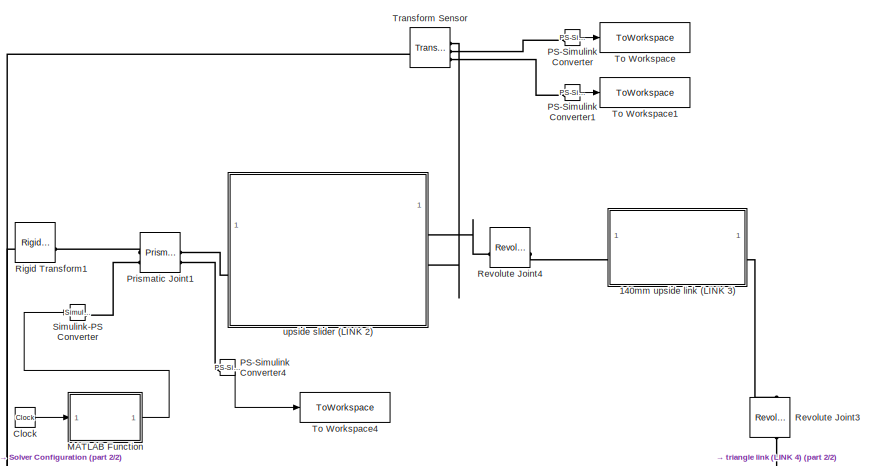
[diagram: root canvas - part 1/2, top center region]
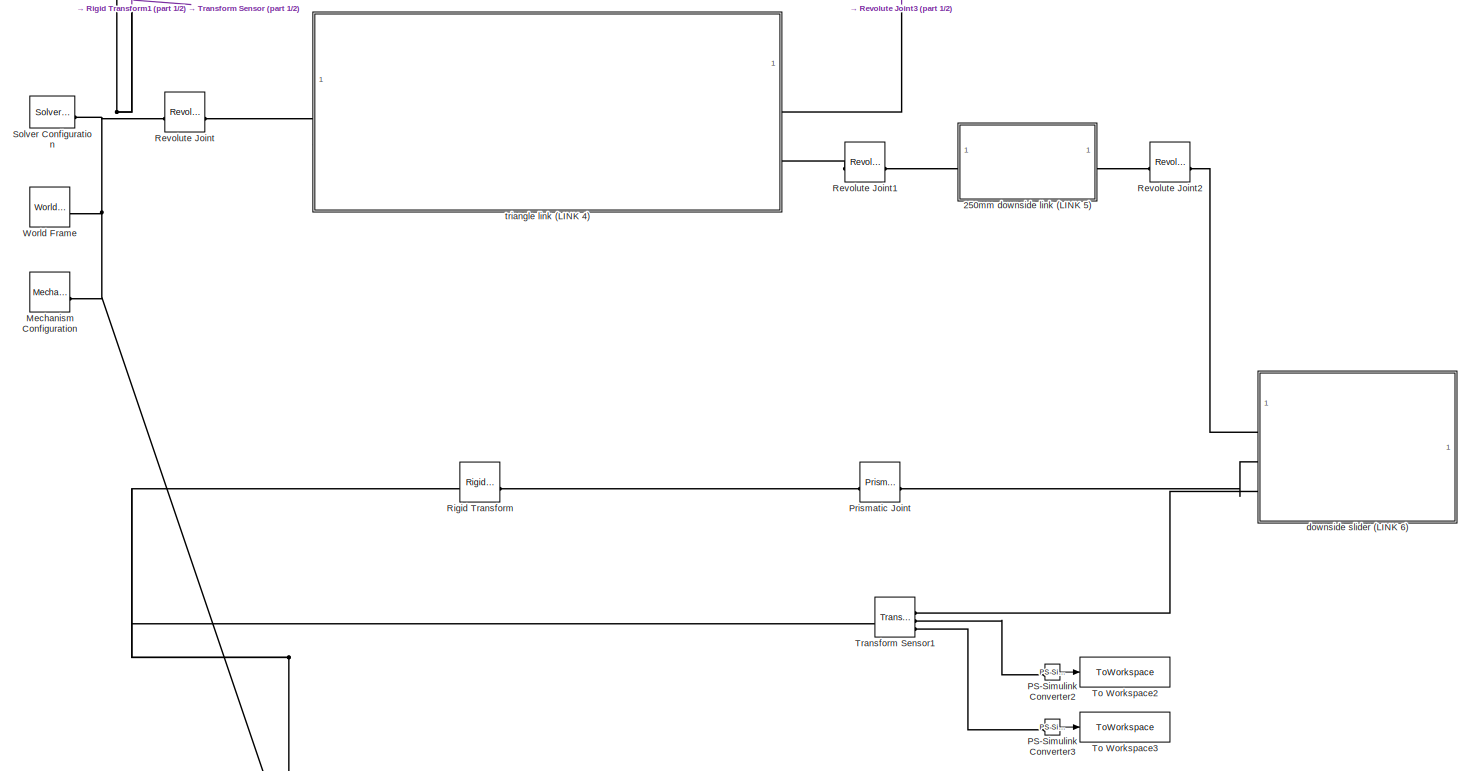
[diagram: root canvas - part 2/2, full width, middle band]
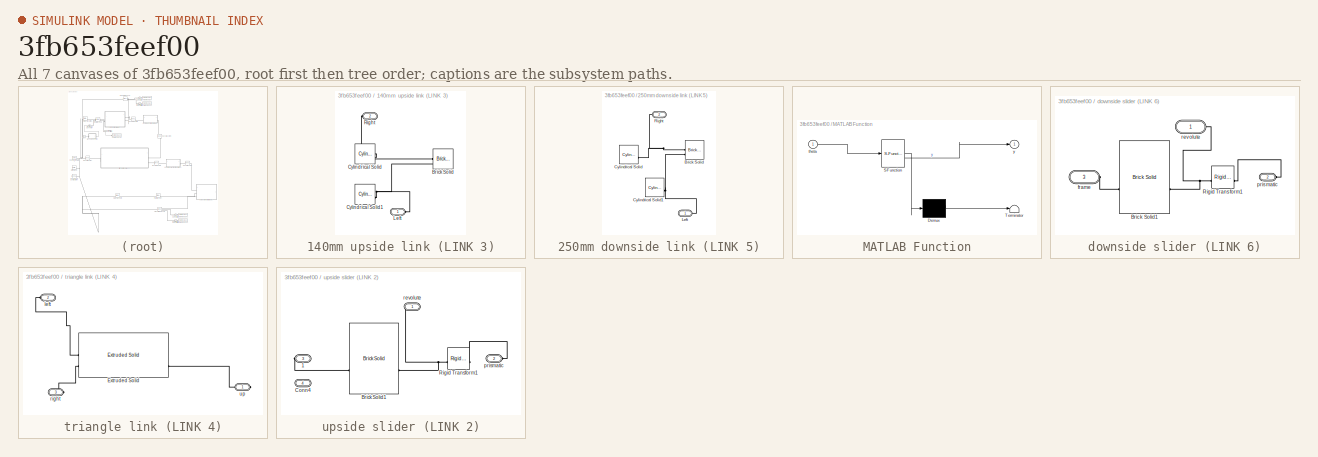
[diagram: thumbnail index - all 7 canvases of the model, root first then tree order]
MODEL slx_3fb653feef00
KIND model
CONFIG AbsTol = auto
CONFIG EnableMultiTasking = off
CONFIG FixedStep = auto
CONFIG MaxStep = auto
CONFIG MinStep = auto
CONFIG RelTol = 1e-3
CONFIG SampleTimeConstraint = Unconstrained
CONFIG SolverName = VariableStepAuto
CONFIG StartTime = 0.0
CONFIG StopTime = 1.0
BLOCK [SubSystem] 140mm upside link (LINK 3)
BLOCK [Reference] 140mm upside link (LINK 3)/Brick Solid  REF=sm_lib/Body Elements/Brick Solid
  SourceBlock = sm_lib/Body Elements/Brick Solid
  SourceType = Brick Solid
BLOCK [Reference] 140mm upside link (LINK 3)/Cylindrical Solid  REF=sm_lib/Body Elements/Cylindrical Solid
  SourceBlock = sm_lib/Body Elements/Cylindrical Solid
  SourceType = Cylindrical Solid
BLOCK [Reference] 140mm upside link (LINK 3)/Cylindrical Solid1  REF=sm_lib/Body Elements/Cylindrical Solid
  SourceBlock = sm_lib/Body Elements/Cylindrical Solid
  SourceType = Cylindrical Solid
BLOCK [PMIOPort] 140mm upside link (LINK 3)/Left
  Side = Left
BLOCK [PMIOPort] 140mm upside link (LINK 3)/Right
  Port = 2
  Side = Right
BLOCK [SubSystem] 250mm downside link (LINK 5)
BLOCK [Reference] 250mm downside link (LINK 5)/Brick Solid  REF=sm_lib/Body Elements/Brick Solid
  SourceBlock = sm_lib/Body Elements/Brick Solid
  SourceType = Brick Solid
BLOCK [Reference] 250mm downside link (LINK 5)/Cylindrical Solid  REF=sm_lib/Body Elements/Cylindrical Solid
  SourceBlock = sm_lib/Body Elements/Cylindrical Solid
  SourceType = Cylindrical Solid
BLOCK [Reference] 250mm downside link (LINK 5)/Cylindrical Solid1  REF=sm_lib/Body Elements/Cylindrical Solid
  SourceBlock = sm_lib/Body Elements/Cylindrical Solid
  SourceType = Cylindrical Solid
BLOCK [PMIOPort] 250mm downside link (LINK 5)/Left
  Side = Left
BLOCK [PMIOPort] 250mm downside link (LINK 5)/Right
  Port = 2
  Side = Right
BLOCK [Clock] Clock
  Decimation = 1
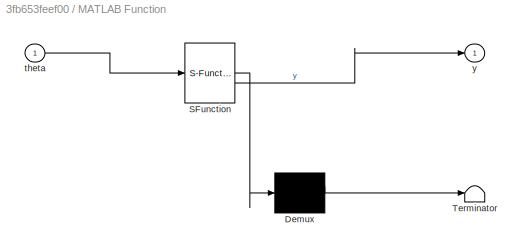
BLOCK [SubSystem] MATLAB Function
  ErrorFcn = Stateflow.Translate.translate
  PermitHierarchicalResolution = ExplicitOnly
  SFBlockType = MATLAB Function
  TreatAsAtomicUnit = on
BLOCK [Demux] MATLAB Function/ Demux 
  Outputs = 1
BLOCK [S-Function] MATLAB Function/ SFunction 
  EnableBusSupport = off
  FunctionName = sf_sfun
  PortCounts = [1 2]
  SFcnIsStateOwnerBlock = off
  SFunctionDeploymentMode = off
  Tag = Stateflow S-Function 2
BLOCK [Terminator] MATLAB Function/ Terminator 
BLOCK [Inport] MATLAB Function/theta
BLOCK [Outport] MATLAB Function/y
BLOCK [Reference] Mechanism Configuration  REF=sm_lib/Utilities/Mechanism
Configuration
  SourceBlock = sm_lib/Utilities/Mechanism\nConfiguration
  SourceType = Mechanism\nConfiguration
BLOCK [Reference] PS-Simulink Converter  REF=nesl_utility/PS-Simulink
Converter
  SourceBlock = nesl_utility/PS-Simulink\nConverter
  SourceType = PS-Simulink\nConverter
BLOCK [Reference] PS-Simulink Converter1  REF=nesl_utility/PS-Simulink
Converter
  SourceBlock = nesl_utility/PS-Simulink\nConverter
  SourceType = PS-Simulink\nConverter
BLOCK [Reference] PS-Simulink Converter2  REF=nesl_utility/PS-Simulink
Converter
  SourceBlock = nesl_utility/PS-Simulink\nConverter
  SourceType = PS-Simulink\nConverter
BLOCK [Reference] PS-Simulink Converter3  REF=nesl_utility/PS-Simulink
Converter
  SourceBlock = nesl_utility/PS-Simulink\nConverter
  SourceType = PS-Simulink\nConverter
BLOCK [Reference] PS-Simulink Converter4  REF=nesl_utility/PS-Simulink
Converter
  SourceBlock = nesl_utility/PS-Simulink\nConverter
  SourceType = PS-Simulink\nConverter
BLOCK [Reference] Prismatic Joint  REF=sm_lib/Joints/Prismatic
Joint
  SourceBlock = sm_lib/Joints/Prismatic\nJoint
  SourceType = Prismatic\nJoint
BLOCK [Reference] Prismatic Joint1  REF=sm_lib/Joints/Prismatic
Joint
  SourceBlock = sm_lib/Joints/Prismatic\nJoint
  SourceType = Prismatic\nJoint
BLOCK [Reference] Revolute Joint  REF=sm_lib/Joints/Revolute Joint
  SourceBlock = sm_lib/Joints/Revolute Joint
  SourceType = Revolute Joint
BLOCK [Reference] Revolute Joint1  REF=sm_lib/Joints/Revolute Joint
  SourceBlock = sm_lib/Joints/Revolute Joint
  SourceType = Revolute Joint
BLOCK [Reference] Revolute Joint2  REF=sm_lib/Joints/Revolute Joint
  SourceBlock = sm_lib/Joints/Revolute Joint
  SourceType = Revolute Joint
BLOCK [Reference] Revolute Joint3  REF=sm_lib/Joints/Revolute Joint
  NameLocation = left
  SourceBlock = sm_lib/Joints/Revolute Joint
  SourceType = Revolute Joint
BLOCK [Reference] Revolute Joint4  REF=sm_lib/Joints/Revolute Joint
  SourceBlock = sm_lib/Joints/Revolute Joint
  SourceType = Revolute Joint
BLOCK [Reference] Rigid Transform  REF=sm_lib/Frames and
Transforms/Rigid
Transform
  SourceBlock = sm_lib/Frames and\nTransforms/Rigid\nTransform
  SourceType = Rigid\nTransform
BLOCK [Reference] Rigid Transform1  REF=sm_lib/Frames and
Transforms/Rigid
Transform
  SourceBlock = sm_lib/Frames and\nTransforms/Rigid\nTransform
  SourceType = Rigid\nTransform
BLOCK [Reference] Simulink-PS Converter  REF=nesl_utility/Simulink-PS
Converter
  SourceBlock = nesl_utility/Simulink-PS\nConverter
  SourceType = Simulink-PS\nConverter
BLOCK [Reference] Solver Configuration  REF=nesl_utility/Solver
Configuration
  SourceBlock = nesl_utility/Solver\nConfiguration
  SourceType = Solver\nConfiguration
BLOCK [ToWorkspace] To Workspace
  FixptAsFi = on
  MaxDataPoints = inf
  SampleTime = -1
  SaveFormat = Timeseries
  VariableName = link2vel
BLOCK [ToWorkspace] To Workspace1
  FixptAsFi = on
  MaxDataPoints = inf
  SampleTime = -1
  SaveFormat = Timeseries
  VariableName = link2acc
BLOCK [ToWorkspace] To Workspace2
  FixptAsFi = on
  MaxDataPoints = inf
  SampleTime = -1
  SaveFormat = Timeseries
  VariableName = link6vel
BLOCK [ToWorkspace] To Workspace3
  FixptAsFi = on
  MaxDataPoints = inf
  SampleTime = -1
  SaveFormat = Timeseries
  VariableName = link6acc
BLOCK [ToWorkspace] To Workspace4
  FixptAsFi = on
  MaxDataPoints = inf
  SampleTime = -1
  SaveFormat = Structure With Time
  VariableName = input_force
BLOCK [Reference] Transform Sensor  REF=sm_lib/Frames and
Transforms/Transform
Sensor
  SourceBlock = sm_lib/Frames and\nTransforms/Transform\nSensor
  SourceType = Transform\nSensor
BLOCK [Reference] Transform Sensor1  REF=sm_lib/Frames and
Transforms/Transform
Sensor
  SourceBlock = sm_lib/Frames and\nTransforms/Transform\nSensor
  SourceType = Transform\nSensor
BLOCK [Reference] World Frame  REF=sm_lib/Frames and
Transforms/World Frame
  SourceBlock = sm_lib/Frames and\nTransforms/World Frame
  SourceType = World Frame
BLOCK [SubSystem] downside slider (LINK 6)
BLOCK [Reference] downside slider (LINK 6)/Brick Solid1  REF=sm_lib/Body Elements/Brick Solid
  SourceBlock = sm_lib/Body Elements/Brick Solid
  SourceType = Brick Solid
BLOCK [Reference] downside slider (LINK 6)/Rigid Transform1  REF=sm_lib/Frames and
Transforms/Rigid
Transform
  SourceBlock = sm_lib/Frames and\nTransforms/Rigid\nTransform
  SourceType = Rigid\nTransform
BLOCK [PMIOPort] downside slider (LINK 6)/frame
  Port = 3
  Side = Left
BLOCK [PMIOPort] downside slider (LINK 6)/prismatic
  Port = 2
  Side = Left
BLOCK [PMIOPort] downside slider (LINK 6)/revolute
  Side = Left
BLOCK [SubSystem] triangle link (LINK 4)
BLOCK [Reference] triangle link (LINK 4)/Extruded Solid  REF=sm_lib/Body Elements/Extruded Solid
  SourceBlock = sm_lib/Body Elements/Extruded Solid
  SourceType = Extruded Solid
BLOCK [PMIOPort] triangle link (LINK 4)/left
  Port = 2
  Side = Left
BLOCK [PMIOPort] triangle link (LINK 4)/right
  Port = 3
  Side = Right
BLOCK [PMIOPort] triangle link (LINK 4)/up
  Side = Right
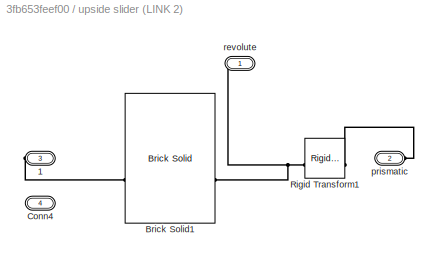
BLOCK [SubSystem] upside slider (LINK 2)
  PortSchema = {"entries":[{"content":{"sides":[{"content":{"connectorIds":["LConn1"]},"type":"ConnectorPlacement.EquallySpacedRectSide","uuid":"f0b6219e-fc0f-4f1e-9ffa-b6ed645b7a73"},{"content":{"connectorIds":["RConn1","RConn2"],"side":"RIGHT"},"type":"ConnectorPlacement.EquallySpacedRectSide","uuid":"dfd17382-4ec3-42cf-b518-ef843e92e2f4"},{"content":{"side":"TOP"},"type":"ConnectorPlacement.EquallySpacedRectS...<+388ch>
BLOCK [PMIOPort] upside slider (LINK 2)/1
  Port = 3
  Side = Right
BLOCK [Reference] upside slider (LINK 2)/Brick Solid1  REF=sm_lib/Body Elements/Brick Solid
  SourceBlock = sm_lib/Body Elements/Brick Solid
  SourceType = Brick Solid
BLOCK [PMIOPort] upside slider (LINK 2)/Conn4
  Port = 4
  Side = Right
BLOCK [Reference] upside slider (LINK 2)/Rigid Transform1  REF=sm_lib/Frames and
Transforms/Rigid
Transform
  SourceBlock = sm_lib/Frames and\nTransforms/Rigid\nTransform
  SourceType = Rigid\nTransform
BLOCK [PMIOPort] upside slider (LINK 2)/prismatic
  Port = 2
  Side = Left
BLOCK [PMIOPort] upside slider (LINK 2)/revolute
  Side = Right
LINE Clock:1 -> MATLAB Function:1
LINE MATLAB Function:1 -> Simulink-PS Converter:1
LINE PS-Simulink Converter1:1 -> To Workspace1:1
LINE PS-Simulink Converter2:1 -> To Workspace2:1
LINE PS-Simulink Converter3:1 -> To Workspace3:1
LINE PS-Simulink Converter4:1 -> To Workspace4:1
LINE PS-Simulink Converter:1 -> To Workspace:1
PNET net1: 140mm upside link (LINK 3)/Brick Solid:LConn1 -- 140mm upside link (LINK 3)/Cylindrical Solid:RConn1 -- 140mm upside link (LINK 3)/Right:RConn1
PNET net2: 140mm upside link (LINK 3)/Brick Solid:LConn2 -- 140mm upside link (LINK 3)/Cylindrical Solid1:RConn1 -- 140mm upside link (LINK 3)/Left:RConn1
PLINE 140mm upside link (LINK 3):LConn1 -- Revolute Joint4:RConn1
PLINE 140mm upside link (LINK 3):RConn1 -- Revolute Joint3:LConn1
PNET net3: 250mm downside link (LINK 5)/Brick Solid:LConn1 -- 250mm downside link (LINK 5)/Cylindrical Solid:RConn1 -- 250mm downside link (LINK 5)/Right:RConn1
PNET net4: 250mm downside link (LINK 5)/Brick Solid:LConn2 -- 250mm downside link (LINK 5)/Cylindrical Solid1:RConn1 -- 250mm downside link (LINK 5)/Left:RConn1
PLINE 250mm downside link (LINK 5):LConn1 -- Revolute Joint1:RConn1
PLINE 250mm downside link (LINK 5):RConn1 -- Revolute Joint2:LConn1
PNET net5: Mechanism Configuration:RConn1 -- Revolute Joint:LConn1 -- Rigid Transform1:LConn1 -- Rigid Transform:LConn1 -- Solver Configuration:RConn1 -- Transform Sensor1:LConn1 -- Transform Sensor:LConn1 -- World Frame:RConn1
PLINE PS-Simulink Converter1:LConn1 -- Transform Sensor:RConn3
PLINE PS-Simulink Converter2:LConn1 -- Transform Sensor1:RConn2
PLINE PS-Simulink Converter3:LConn1 -- Transform Sensor1:RConn3
PLINE PS-Simulink Converter4:LConn1 -- Prismatic Joint1:RConn2
PLINE PS-Simulink Converter:LConn1 -- Transform Sensor:RConn2
PLINE Prismatic Joint1:LConn1 -- Rigid Transform1:RConn1
PLINE Prismatic Joint1:LConn2 -- Simulink-PS Converter:RConn1
PLINE Prismatic Joint1:RConn1 -- upside slider (LINK 2):LConn1
PLINE Prismatic Joint:LConn1 -- Rigid Transform:RConn1
PLINE Prismatic Joint:RConn1 -- downside slider (LINK 6):LConn2
PLINE Revolute Joint1:LConn1 -- triangle link (LINK 4):RConn2
PLINE Revolute Joint2:RConn1 -- downside slider (LINK 6):LConn1
PLINE Revolute Joint3:RConn1 -- triangle link (LINK 4):RConn1
PLINE Revolute Joint4:LConn1 -- upside slider (LINK 2):RConn1
PLINE Revolute Joint:RConn1 -- triangle link (LINK 4):LConn1
PLINE Transform Sensor1:RConn1 -- downside slider (LINK 6):LConn3
PLINE Transform Sensor:RConn1 -- upside slider (LINK 2):RConn2
PLINE downside slider (LINK 6)/Brick Solid1:LConn1 -- downside slider (LINK 6)/frame:RConn1
PNET net6: downside slider (LINK 6)/Brick Solid1:RConn1 -- downside slider (LINK 6)/Rigid Transform1:LConn1 -- downside slider (LINK 6)/revolute:RConn1
PLINE downside slider (LINK 6)/Rigid Transform1:RConn1 -- downside slider (LINK 6)/prismatic:RConn1
PLINE triangle link (LINK 4)/Extruded Solid:LConn1 -- triangle link (LINK 4)/left:RConn1
PLINE triangle link (LINK 4)/Extruded Solid:LConn2 -- triangle link (LINK 4)/right:RConn1
PLINE triangle link (LINK 4)/Extruded Solid:RConn2 -- triangle link (LINK 4)/up:RConn1
PLINE upside slider (LINK 2)/1:RConn1 -- upside slider (LINK 2)/Brick Solid1:LConn1
PNET net7: upside slider (LINK 2)/Brick Solid1:RConn1 -- upside slider (LINK 2)/Rigid Transform1:LConn1 -- upside slider (LINK 2)/revolute:RConn1
PLINE upside slider (LINK 2)/Rigid Transform1:RConn1 -- upside slider (LINK 2)/prismatic:RConn1
note: PNET lines group multi-terminal physical nets as a canonical sorted terminal list (undirected conserving connections); 2-terminal nets keep the pairwise PLINE form
CHART MATLAB Function states=1 transitions=1
  STATE_LABEL 'eML_blk_kernel()'
  STATE_LABEL 'SCRIPT:\nfunction y = y_theta(theta)\n\nh = 280.03;\n\nif theta < 1/8\n    y = (h / (4 + pi)) * ( pi*theta - (1/4)*sin(4*pi*theta) );\nelseif theta < 7/8\n    y = (h / (4 + pi)) * ( 2 + pi*theta - (9/4)*sin((4*pi*theta)/3 + pi/3) );\nelseif theta <= 1\n    y = (h / (4 + pi)) * ( 4 + pi*theta - (1/4)*sin(4*pi*theta) );\nelse\n    y = 0; % 정의역 밖일 때 처리\nend'
CHART  states=0 transitions=0
